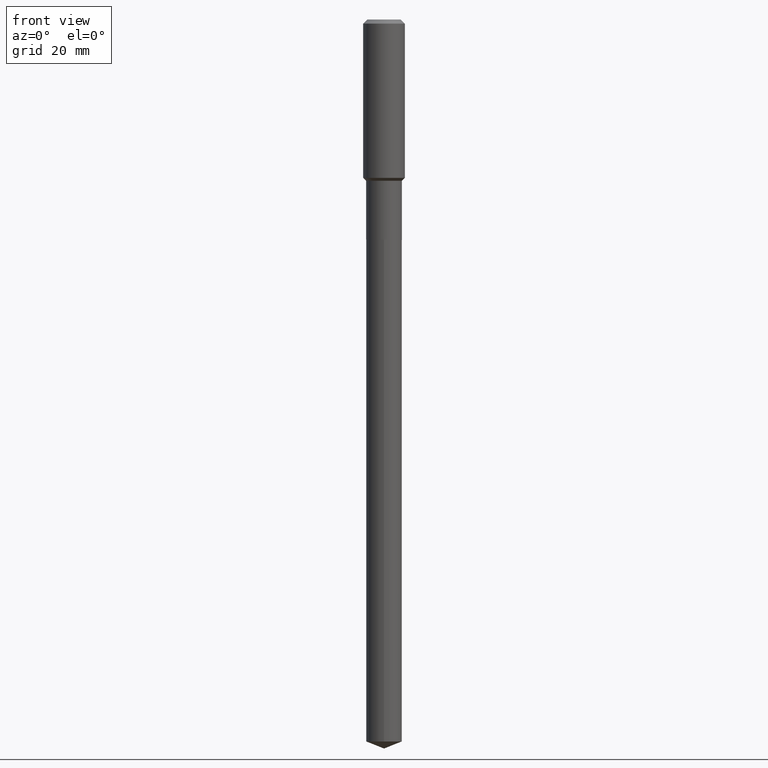
[diagram: clean part render]
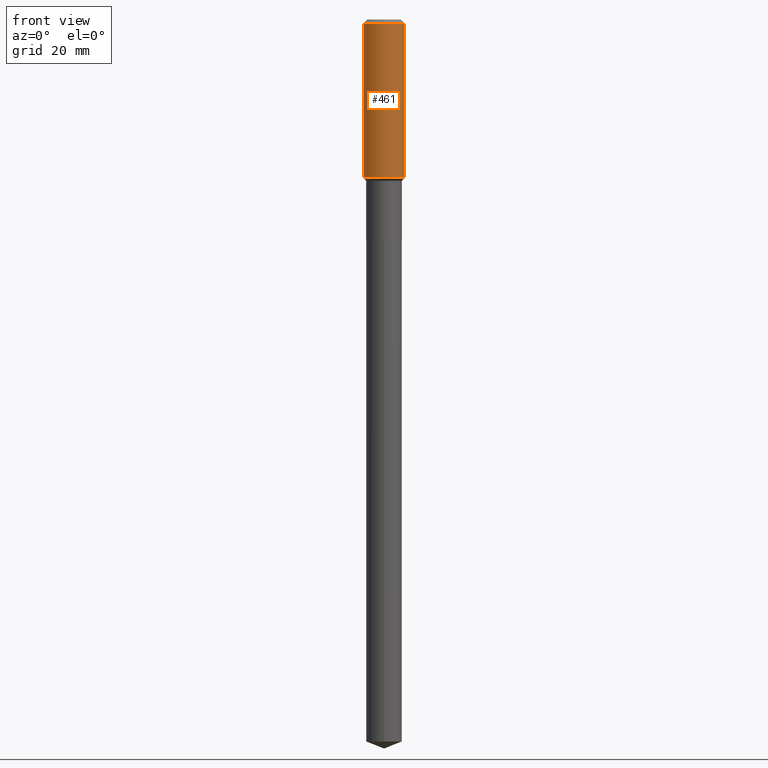
[diagram: same view with one face highlighted and labeled with its STEP entity id]
A machine part, front view. The second image highlights one B-rep face of the part: STEP entity #461.
In plain terms, the highlighted cylindrical surface (edge-blend (fillet) strip) has radius 5.9995 mm, axis along (-0, 0, 1).
Its self-contained STEP definition (entity closure, byte-faithful):
#2 = EDGE_LOOP ( 'NONE', ( #453, #384, #380, #451 ) ) ;
#12 = LINE ( 'NONE', #363, #400 ) ;
#47 = EDGE_CURVE ( 'NONE', #367, #343, #49, .T. ) ;
#49 = LINE ( 'NONE', #98, #482 ) ;
#59 = EDGE_CURVE ( 'NONE', #141, #88, #12, .T. ) ;
#65 = DIRECTION ( 'NONE',  ( -2.445468806185136597E-29, 3.491481338843145583E-15, 1.000000000000000000 ) ) ;
#66 = EDGE_CURVE ( 'NONE', #343, #88, #376, .T. ) ;
#83 = FACE_OUTER_BOUND ( 'NONE', #2, .T. ) ;
#88 = VERTEX_POINT ( 'NONE', #324 ) ;
#97 = DIRECTION ( 'NONE',  ( -2.445468806185136597E-29, 3.491481338843145583E-15, 1.000000000000000000 ) ) ;
#98 = CARTESIAN_POINT ( 'NONE',  ( -0.2362000000000001043, 1.678301941865357380E-15, -1.161852468318209317E-29 ) ) ;
#104 = EDGE_CURVE ( 'NONE', #367, #141, #406, .T. ) ;
#131 = DIRECTION ( 'NONE',  ( -2.445468806185136877E-29, 3.491481338843145188E-15, 1.000000000000000000 ) ) ;
#141 = VERTEX_POINT ( 'NONE', #368 ) ;
#165 = DIRECTION ( 'NONE',  ( -2.445468806185136597E-29, 3.491481338843145583E-15, 1.000000000000000000 ) ) ;
#198 = CARTESIAN_POINT ( 'NONE',  ( -0.2362000000000002153, -4.591525672362220981E-15, -1.795750000000000179 ) ) ;
#205 = CYLINDRICAL_SURFACE ( 'NONE', #228, 0.2362000000000001043 ) ;
#228 = AXIS2_PLACEMENT_3D ( 'NONE', #355, #97, #256 ) ;
#256 = DIRECTION ( 'NONE',  ( 1.000000000000000000, -6.982962677686266711E-15, 4.876176775795935793E-29 ) ) ;
#260 = AXIS2_PLACEMENT_3D ( 'NONE', #358, #165, #320 ) ;
#301 = CARTESIAN_POINT ( 'NONE',  ( 4.391450608706959640E-29, -6.269827614227578953E-15, -1.795750000000000179 ) ) ;
#320 = DIRECTION ( 'NONE',  ( 1.000000000000000000, -6.982962677686266711E-15, 0.000000000000000000 ) ) ;
#324 = CARTESIAN_POINT ( 'NONE',  ( 0.2361999999999999933, -1.814313362916447440E-15, -0.04724000000000027483 ) ) ;
#343 = VERTEX_POINT ( 'NONE', #463 ) ;
#351 = AXIS2_PLACEMENT_3D ( 'NONE', #301, #65, #444 ) ;
#355 = CARTESIAN_POINT ( 'NONE',  ( 0.000000000000000000, 0.000000000000000000, 0.000000000000000000 ) ) ;
#358 = CARTESIAN_POINT ( 'NONE',  ( 1.155239464041865331E-30, -1.649375784469511612E-16, -0.04724000000000027483 ) ) ;
#363 = CARTESIAN_POINT ( 'NONE',  ( 0.2362000000000001043, -1.649375784469496920E-15, 1.151752954443000508E-29 ) ) ;
#367 = VERTEX_POINT ( 'NONE', #198 ) ;
#368 = CARTESIAN_POINT ( 'NONE',  ( 0.2362000000000002153, -7.919203398697075478E-15, -1.795750000000000179 ) ) ;
#376 = CIRCLE ( 'NONE', #260, 0.2361999999999999933 ) ;
#380 = ORIENTED_EDGE ( 'NONE', *, *, #59, .T. ) ;
#384 = ORIENTED_EDGE ( 'NONE', *, *, #104, .T. ) ;
#400 = VECTOR ( 'NONE', #131, 39.37007874015748143 ) ;
#406 = CIRCLE ( 'NONE', #351, 0.2362000000000002153 ) ;
#422 = DIRECTION ( 'NONE',  ( -2.445468806185136877E-29, 3.491481338843145188E-15, 1.000000000000000000 ) ) ;
#444 = DIRECTION ( 'NONE',  ( 1.000000000000000000, -6.982962677686266711E-15, 0.000000000000000000 ) ) ;
#451 = ORIENTED_EDGE ( 'NONE', *, *, #66, .F. ) ;
#453 = ORIENTED_EDGE ( 'NONE', *, *, #47, .F. ) ;
#461 = ADVANCED_FACE ( 'NONE', ( #83 ), #205, .T. ) ;
#463 = CARTESIAN_POINT ( 'NONE',  ( -0.2361999999999999933, -1.539080654471907356E-15, -0.04724000000000027483 ) ) ;
#482 = VECTOR ( 'NONE', #422, 39.37007874015748143 ) ;